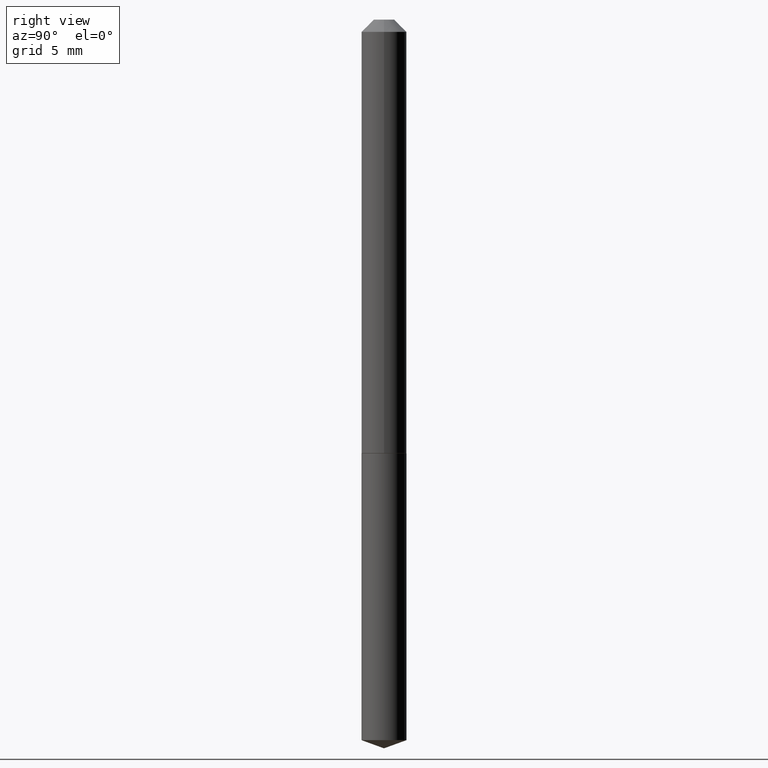
[diagram: clean part render]
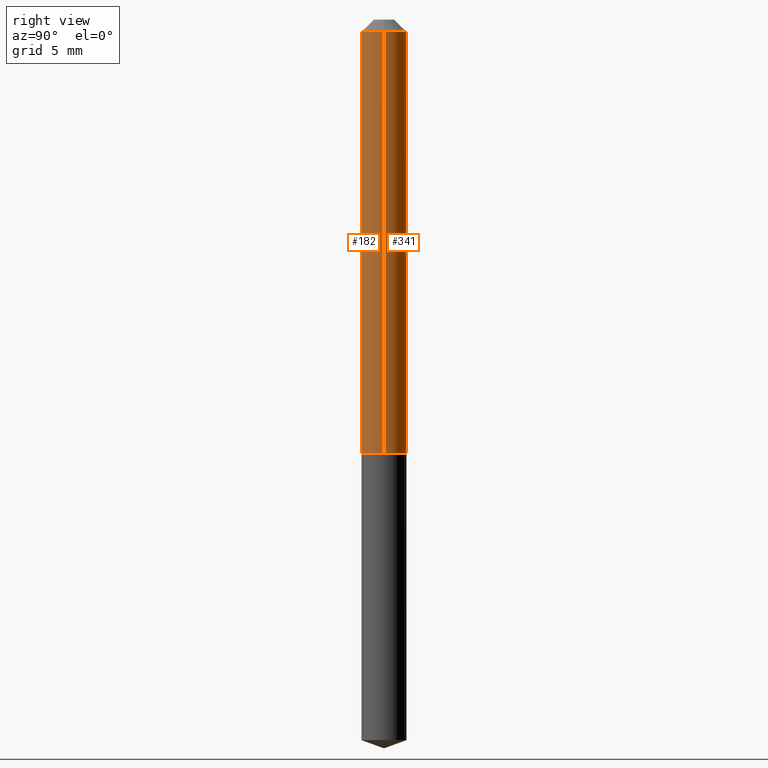
[diagram: same view with one multi-face feature highlighted, each face labeled with its STEP entity id]
A machine part, right view. The highlighted faces form ONE feature: a constant-radius fillet chain: 2 tangent blend faces with common blend radius 1.4732 mm. The faces share edges in the B-rep.
Their STEP definitions:
[1] entity #341 (Cylinder):
#8 = LINE ( 'NONE', #359, #164 ) ;
#10 = AXIS2_PLACEMENT_3D ( 'NONE', #363, #148, #122 ) ;
#15 = VERTEX_POINT ( 'NONE', #330 ) ;
#28 = CARTESIAN_POINT ( 'NONE',  ( 0.05800000000000000294, -5.141206271446525225E-16, -0.03125000000000020123 ) ) ;
#36 = LINE ( 'NONE', #150, #115 ) ;
#50 = DIRECTION ( 'NONE',  ( 1.000000000000000000, -6.982962677686266711E-15, 4.876176775795935793E-29 ) ) ;
#52 = VERTEX_POINT ( 'NONE', #181 ) ;
#57 = DIRECTION ( 'NONE',  ( 1.000000000000000000, -6.982962677686265922E-15, 0.000000000000000000 ) ) ;
#61 = DIRECTION ( 'NONE',  ( -2.445468806185136877E-29, 3.491481338843145188E-15, 1.000000000000000000 ) ) ;
#96 = EDGE_CURVE ( 'NONE', #15, #252, #36, .T. ) ;
#102 = VERTEX_POINT ( 'NONE', #28 ) ;
#107 = DIRECTION ( 'NONE',  ( -2.445468806185136597E-29, 3.491481338843145583E-15, 1.000000000000000000 ) ) ;
#115 = VECTOR ( 'NONE', #120, 39.37007874015748143 ) ;
#120 = DIRECTION ( 'NONE',  ( -2.445468806185136877E-29, 3.491481338843145188E-15, 1.000000000000000000 ) ) ;
#122 = DIRECTION ( 'NONE',  ( 1.000000000000000000, -6.982962677686266711E-15, 0.000000000000000000 ) ) ;
#124 = CARTESIAN_POINT ( 'NONE',  ( 0.000000000000000000, 0.000000000000000000, 0.000000000000000000 ) ) ;
#125 = CIRCLE ( 'NONE', #10, 0.05800000000000000294 ) ;
#126 = DIRECTION ( 'NONE',  ( -2.445468806185136597E-29, 3.491481338843145583E-15, 1.000000000000000000 ) ) ;
#139 = EDGE_CURVE ( 'NONE', #102, #252, #125, .T. ) ;
#148 = DIRECTION ( 'NONE',  ( -2.445468806185136597E-29, 3.491481338843145583E-15, 1.000000000000000000 ) ) ;
#150 = CARTESIAN_POINT ( 'NONE',  ( -0.05800000000000007233, 4.121147867408586217E-16, -2.852982352347848756E-30 ) ) ;
#164 = VECTOR ( 'NONE', #61, 39.37007874015748143 ) ;
#174 = CARTESIAN_POINT ( 'NONE',  ( 2.727920453299519928E-29, -3.894747433479529079E-15, -1.115499999999999936 ) ) ;
#181 = CARTESIAN_POINT ( 'NONE',  ( 0.05800000000000014172, -4.299759268785333684E-15, -1.115499999999999936 ) ) ;
#195 = ORIENTED_EDGE ( 'NONE', *, *, #139, .F. ) ;
#242 = AXIS2_PLACEMENT_3D ( 'NONE', #124, #126, #50 ) ;
#252 = VERTEX_POINT ( 'NONE', #305 ) ;
#256 = EDGE_LOOP ( 'NONE', ( #291, #258, #195, #320 ) ) ;
#258 = ORIENTED_EDGE ( 'NONE', *, *, #96, .T. ) ;
#268 = CIRCLE ( 'NONE', #388, 0.05800000000000014172 ) ;
#291 = ORIENTED_EDGE ( 'NONE', *, *, #373, .T. ) ;
#305 = CARTESIAN_POINT ( 'NONE',  ( -0.05800000000000000294, -1.589813325918329827E-15, -0.03125000000000020123 ) ) ;
#307 = CYLINDRICAL_SURFACE ( 'NONE', #242, 0.05800000000000007233 ) ;
#320 = ORIENTED_EDGE ( 'NONE', *, *, #358, .F. ) ;
#330 = CARTESIAN_POINT ( 'NONE',  ( -0.05800000000000014172, -3.482632646738669816E-15, -1.115499999999999936 ) ) ;
#341 = ADVANCED_FACE ( 'NONE', ( #366 ), #307, .T. ) ;
#358 = EDGE_CURVE ( 'NONE', #52, #102, #8, .T. ) ;
#359 = CARTESIAN_POINT ( 'NONE',  ( 0.05800000000000007233, -4.050118353058039642E-16, 2.828182529961646347E-30 ) ) ;
#363 = CARTESIAN_POINT ( 'NONE',  ( 7.642090019328601786E-31, -1.091087918388490144E-16, -0.03125000000000020123 ) ) ;
#366 = FACE_OUTER_BOUND ( 'NONE', #256, .T. ) ;
#373 = EDGE_CURVE ( 'NONE', #52, #15, #268, .T. ) ;
#388 = AXIS2_PLACEMENT_3D ( 'NONE', #174, #107, #57 ) ;
[2] entity #182 (Cylinder):
#8 = LINE ( 'NONE', #359, #164 ) ;
#14 = AXIS2_PLACEMENT_3D ( 'NONE', #145, #58, #86 ) ;
#15 = VERTEX_POINT ( 'NONE', #330 ) ;
#17 = ORIENTED_EDGE ( 'NONE', *, *, #51, .F. ) ;
#28 = CARTESIAN_POINT ( 'NONE',  ( 0.05800000000000000294, -5.141206271446525225E-16, -0.03125000000000020123 ) ) ;
#36 = LINE ( 'NONE', #150, #115 ) ;
#39 = AXIS2_PLACEMENT_3D ( 'NONE', #163, #368, #100 ) ;
#51 = EDGE_CURVE ( 'NONE', #252, #102, #215, .T. ) ;
#52 = VERTEX_POINT ( 'NONE', #181 ) ;
#58 = DIRECTION ( 'NONE',  ( -2.445468806185136597E-29, 3.491481338843145583E-15, 1.000000000000000000 ) ) ;
#61 = DIRECTION ( 'NONE',  ( -2.445468806185136877E-29, 3.491481338843145188E-15, 1.000000000000000000 ) ) ;
#86 = DIRECTION ( 'NONE',  ( 1.000000000000000000, -6.982962677686266711E-15, 4.876176775795935793E-29 ) ) ;
#91 = CYLINDRICAL_SURFACE ( 'NONE', #14, 0.05800000000000007233 ) ;
#94 = CARTESIAN_POINT ( 'NONE',  ( 7.642090019328601786E-31, -1.091087918388490144E-16, -0.03125000000000020123 ) ) ;
#96 = EDGE_CURVE ( 'NONE', #15, #252, #36, .T. ) ;
#100 = DIRECTION ( 'NONE',  ( 1.000000000000000000, -6.982962677686265922E-15, 0.000000000000000000 ) ) ;
#102 = VERTEX_POINT ( 'NONE', #28 ) ;
#104 = ORIENTED_EDGE ( 'NONE', *, *, #96, .F. ) ;
#108 = CIRCLE ( 'NONE', #39, 0.05800000000000014172 ) ;
#115 = VECTOR ( 'NONE', #120, 39.37007874015748143 ) ;
#120 = DIRECTION ( 'NONE',  ( -2.445468806185136877E-29, 3.491481338843145188E-15, 1.000000000000000000 ) ) ;
#131 = ORIENTED_EDGE ( 'NONE', *, *, #216, .T. ) ;
#145 = CARTESIAN_POINT ( 'NONE',  ( 0.000000000000000000, 0.000000000000000000, 0.000000000000000000 ) ) ;
#150 = CARTESIAN_POINT ( 'NONE',  ( -0.05800000000000007233, 4.121147867408586217E-16, -2.852982352347848756E-30 ) ) ;
#163 = CARTESIAN_POINT ( 'NONE',  ( 2.727920453299519928E-29, -3.894747433479529079E-15, -1.115499999999999936 ) ) ;
#164 = VECTOR ( 'NONE', #61, 39.37007874015748143 ) ;
#181 = CARTESIAN_POINT ( 'NONE',  ( 0.05800000000000014172, -4.299759268785333684E-15, -1.115499999999999936 ) ) ;
#182 = ADVANCED_FACE ( 'NONE', ( #202 ), #91, .T. ) ;
#200 = EDGE_LOOP ( 'NONE', ( #104, #131, #227, #17 ) ) ;
#202 = FACE_OUTER_BOUND ( 'NONE', #200, .T. ) ;
#215 = CIRCLE ( 'NONE', #306, 0.05800000000000000294 ) ;
#216 = EDGE_CURVE ( 'NONE', #15, #52, #108, .T. ) ;
#227 = ORIENTED_EDGE ( 'NONE', *, *, #358, .T. ) ;
#244 = DIRECTION ( 'NONE',  ( 1.000000000000000000, -6.982962677686266711E-15, 0.000000000000000000 ) ) ;
#252 = VERTEX_POINT ( 'NONE', #305 ) ;
#305 = CARTESIAN_POINT ( 'NONE',  ( -0.05800000000000000294, -1.589813325918329827E-15, -0.03125000000000020123 ) ) ;
#306 = AXIS2_PLACEMENT_3D ( 'NONE', #94, #323, #244 ) ;
#323 = DIRECTION ( 'NONE',  ( -2.445468806185136597E-29, 3.491481338843145583E-15, 1.000000000000000000 ) ) ;
#330 = CARTESIAN_POINT ( 'NONE',  ( -0.05800000000000014172, -3.482632646738669816E-15, -1.115499999999999936 ) ) ;
#358 = EDGE_CURVE ( 'NONE', #52, #102, #8, .T. ) ;
#359 = CARTESIAN_POINT ( 'NONE',  ( 0.05800000000000007233, -4.050118353058039642E-16, 2.828182529961646347E-30 ) ) ;
#368 = DIRECTION ( 'NONE',  ( -2.445468806185136597E-29, 3.491481338843145583E-15, 1.000000000000000000 ) ) ;